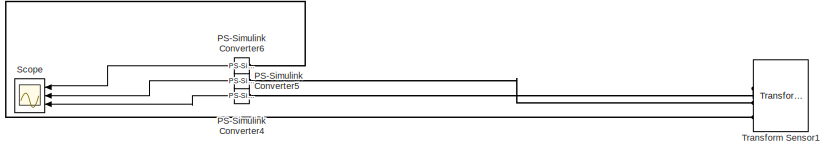
[diagram: root canvas - part 1/2, top center region]
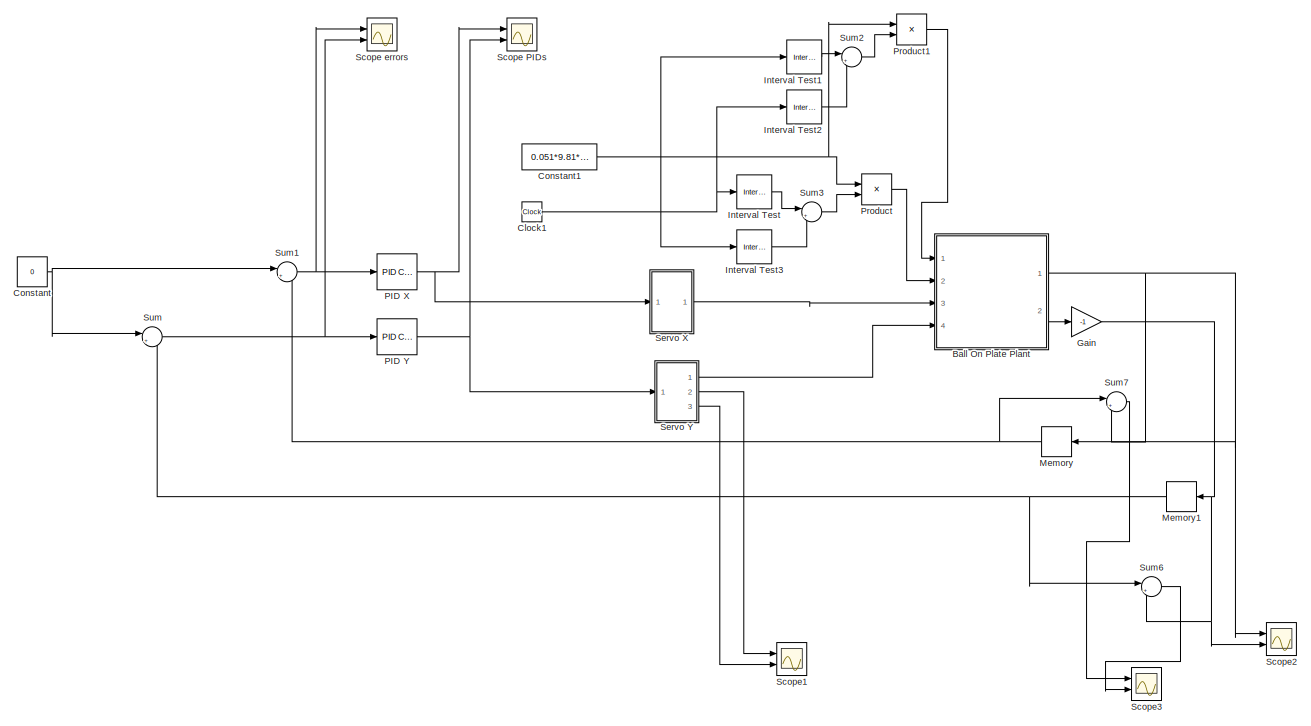
[diagram: root canvas - part 2/2, full width, bottom band]
MODEL slx_c1e351d146ca
KIND model
CONFIG AbsTol = auto
CONFIG EnableMultiTasking = off
CONFIG FixedStep = 1e-5
CONFIG InitFcn = Param
CONFIG MaxStep = auto
CONFIG MinStep = auto
CONFIG RelTol = 1e-1
CONFIG SampleTimeConstraint = Unconstrained
CONFIG SolverName = FixedStepAuto
CONFIG StartTime = 0.0
CONFIG StopTime = 10
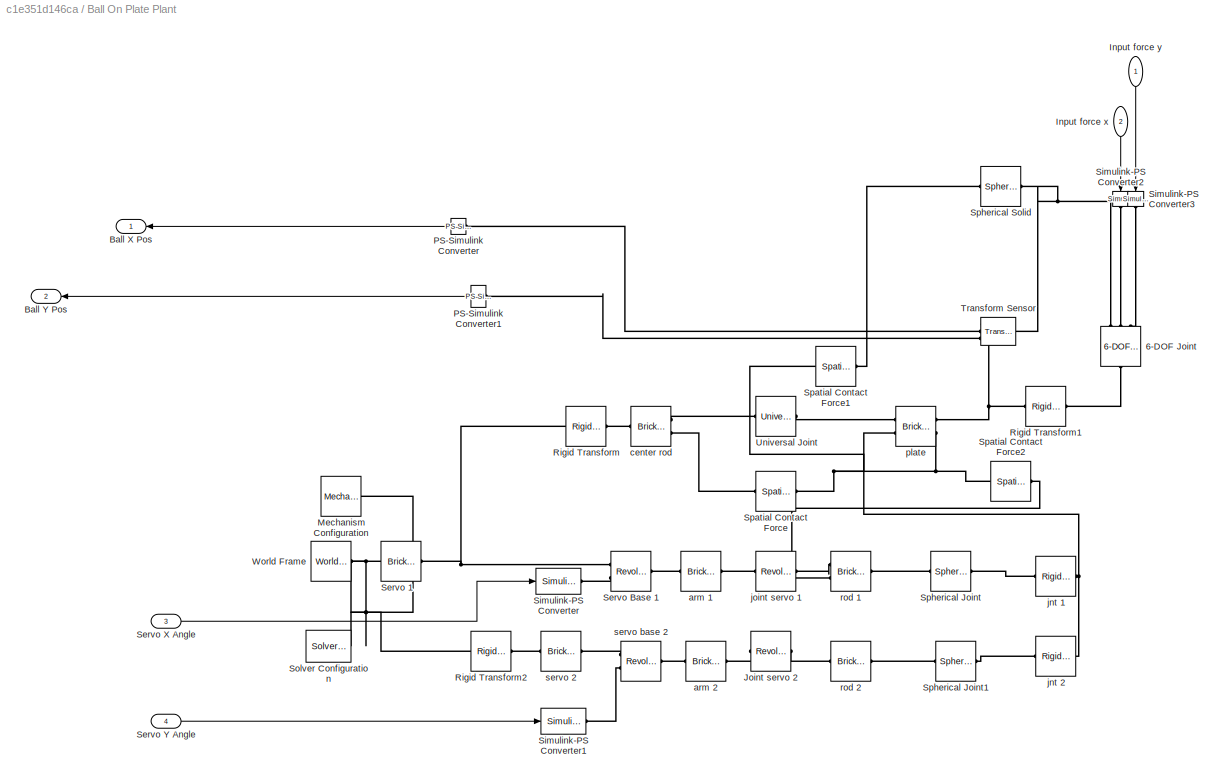
BLOCK [SubSystem] Ball On Plate Plant
  Ports = [4, 2]
  RequestExecContextInheritance = off
BLOCK [Reference] Ball On Plate Plant/6-DOF Joint  REF=sm_lib/Joints/6-DOF Joint
  NameLocation = left
  Ports = [0, 0, 0, 0, 0, 3, 1]
  SourceBlock = sm_lib/Joints/6-DOF Joint
  SourceProductBaseCode = MS
  SourceType = 6-DOF Joint
BLOCK [Outport] Ball On Plate Plant/Ball X Pos
BLOCK [Outport] Ball On Plate Plant/Ball Y Pos
  Port = 2
BLOCK [Inport] Ball On Plate Plant/Input force x
  NameLocation = left
  Port = 2
BLOCK [Inport] Ball On Plate Plant/Input force y
  NameLocation = left
BLOCK [Reference] Ball On Plate Plant/Joint servo 2  REF=sm_lib/Joints/Revolute Joint
  Ports = [0, 0, 0, 0, 0, 1, 1]
  SourceBlock = sm_lib/Joints/Revolute Joint
  SourceProductBaseCode = MS
  SourceType = Revolute Joint
BLOCK [Reference] Ball On Plate Plant/Mechanism Configuration  REF=sm_lib/Utilities/Mechanism
Configuration
  Ports = [0, 0, 0, 0, 0, 0, 1]
  SourceBlock = sm_lib/Utilities/Mechanism\nConfiguration
  SourceProductBaseCode = MS
  SourceType = Mechanism\nConfiguration
BLOCK [Reference] Ball On Plate Plant/PS-Simulink Converter  REF=nesl_utility/PS-Simulink
Converter
  NameLocation = top
  Ports = [0, 1, 0, 0, 0, 1]
  SourceBlock = nesl_utility/PS-Simulink\nConverter
  SourceProductBaseCode = SS
  SourceType = PS-Simulink\nConverter
BLOCK [Reference] Ball On Plate Plant/PS-Simulink Converter1  REF=nesl_utility/PS-Simulink
Converter
  NameLocation = top
  Ports = [0, 1, 0, 0, 0, 1]
  SourceBlock = nesl_utility/PS-Simulink\nConverter
  SourceProductBaseCode = SS
  SourceType = PS-Simulink\nConverter
BLOCK [Reference] Ball On Plate Plant/Rigid Transform  REF=sm_lib/Frames and
Transforms/Rigid
Transform
  Ports = [0, 0, 0, 0, 0, 1, 1]
  SourceBlock = sm_lib/Frames and\nTransforms/Rigid\nTransform
  SourceProductBaseCode = MS
  SourceType = Rigid\nTransform
BLOCK [Reference] Ball On Plate Plant/Rigid Transform1  REF=sm_lib/Frames and
Transforms/Rigid
Transform
  Ports = [0, 0, 0, 0, 0, 1, 1]
  SourceBlock = sm_lib/Frames and\nTransforms/Rigid\nTransform
  SourceProductBaseCode = MS
  SourceType = Rigid\nTransform
BLOCK [Reference] Ball On Plate Plant/Rigid Transform2  REF=sm_lib/Frames and
Transforms/Rigid
Transform
  Ports = [0, 0, 0, 0, 0, 1, 1]
  SourceBlock = sm_lib/Frames and\nTransforms/Rigid\nTransform
  SourceProductBaseCode = MS
  SourceType = Rigid\nTransform
BLOCK [Reference] Ball On Plate Plant/Servo 1  REF=sm_lib/Body Elements/Brick Solid
  Ports = [0, 0, 0, 0, 0, 1, 1]
  SourceBlock = sm_lib/Body Elements/Brick Solid
  SourceProductBaseCode = MS
  SourceType = Brick Solid
BLOCK [Reference] Ball On Plate Plant/Servo Base 1  REF=sm_lib/Joints/Revolute Joint
  Ports = [0, 0, 0, 0, 0, 2, 1]
  SourceBlock = sm_lib/Joints/Revolute Joint
  SourceProductBaseCode = MS
  SourceType = Revolute Joint
BLOCK [Inport] Ball On Plate Plant/Servo X Angle
  Port = 3
BLOCK [Inport] Ball On Plate Plant/Servo Y Angle
  Port = 4
BLOCK [Reference] Ball On Plate Plant/Simulink-PS Converter  REF=nesl_utility/Simulink-PS
Converter
  Ports = [1, 0, 0, 0, 0, 0, 1]
  SourceBlock = nesl_utility/Simulink-PS\nConverter
  SourceProductBaseCode = SS
  SourceType = Simulink-PS\nConverter
BLOCK [Reference] Ball On Plate Plant/Simulink-PS Converter1  REF=nesl_utility/Simulink-PS
Converter
  Ports = [1, 0, 0, 0, 0, 0, 1]
  SourceBlock = nesl_utility/Simulink-PS\nConverter
  SourceProductBaseCode = SS
  SourceType = Simulink-PS\nConverter
BLOCK [Reference] Ball On Plate Plant/Simulink-PS Converter2  REF=nesl_utility/Simulink-PS
Converter
  NameLocation = left
  Ports = [1, 0, 0, 0, 0, 0, 1]
  SourceBlock = nesl_utility/Simulink-PS\nConverter
  SourceProductBaseCode = SS
  SourceType = Simulink-PS\nConverter
BLOCK [Reference] Ball On Plate Plant/Simulink-PS Converter3  REF=nesl_utility/Simulink-PS
Converter
  NameLocation = left
  Ports = [1, 0, 0, 0, 0, 0, 1]
  SourceBlock = nesl_utility/Simulink-PS\nConverter
  SourceProductBaseCode = SS
  SourceType = Simulink-PS\nConverter
BLOCK [Reference] Ball On Plate Plant/Solver Configuration  REF=nesl_utility/Solver
Configuration
  Ports = [0, 0, 0, 0, 0, 0, 1]
  SourceBlock = nesl_utility/Solver\nConfiguration
  SourceProductBaseCode = SS
  SourceType = Solver\nConfiguration
BLOCK [Reference] Ball On Plate Plant/Spatial Contact Force  REF=sm_lib/Forces and
Torques/Spatial
Contact Force
  Ports = [0, 0, 0, 0, 0, 1, 1]
  SourceBlock = sm_lib/Forces and\nTorques/Spatial\nContact Force
  SourceProductBaseCode = MS
  SourceType = Spatial\nContact Force
BLOCK [Reference] Ball On Plate Plant/Spatial Contact Force1  REF=sm_lib/Forces and
Torques/Spatial
Contact Force
  Ports = [0, 0, 0, 0, 0, 1, 1]
  SourceBlock = sm_lib/Forces and\nTorques/Spatial\nContact Force
  SourceProductBaseCode = MS
  SourceType = Spatial\nContact Force
BLOCK [Reference] Ball On Plate Plant/Spatial Contact Force2  REF=sm_lib/Forces and
Torques/Spatial
Contact Force
  Ports = [0, 0, 0, 0, 0, 1, 1]
  SourceBlock = sm_lib/Forces and\nTorques/Spatial\nContact Force
  SourceProductBaseCode = MS
  SourceType = Spatial\nContact Force
BLOCK [Reference] Ball On Plate Plant/Spherical Joint  REF=sm_lib/Joints/Spherical
Joint
  Ports = [0, 0, 0, 0, 0, 1, 1]
  SourceBlock = sm_lib/Joints/Spherical\nJoint
  SourceProductBaseCode = MS
  SourceType = Spherical\nJoint
BLOCK [Reference] Ball On Plate Plant/Spherical Joint1  REF=sm_lib/Joints/Spherical
Joint
  Ports = [0, 0, 0, 0, 0, 1, 1]
  SourceBlock = sm_lib/Joints/Spherical\nJoint
  SourceProductBaseCode = MS
  SourceType = Spherical\nJoint
BLOCK [Reference] Ball On Plate Plant/Spherical Solid  REF=sm_lib/Body Elements/Spherical Solid
  Ports = [0, 0, 0, 0, 0, 1, 1]
  SourceBlock = sm_lib/Body Elements/Spherical Solid
  SourceProductBaseCode = MS
  SourceType = Spherical Solid
BLOCK [Reference] Ball On Plate Plant/Transform Sensor  REF=sm_lib/Frames and
Transforms/Transform
Sensor
  NameLocation = top
  Ports = [0, 0, 0, 0, 0, 1, 3]
  SourceBlock = sm_lib/Frames and\nTransforms/Transform\nSensor
  SourceProductBaseCode = MS
  SourceType = Transform\nSensor
BLOCK [Reference] Ball On Plate Plant/Universal Joint  REF=sm_lib/Joints/Universal
Joint
  Ports = [0, 0, 0, 0, 0, 1, 1]
  SourceBlock = sm_lib/Joints/Universal\nJoint
  SourceProductBaseCode = MS
  SourceType = Universal\nJoint
BLOCK [Reference] Ball On Plate Plant/World Frame  REF=sm_lib/Frames and
Transforms/World Frame
  Ports = [0, 0, 0, 0, 0, 0, 1]
  SourceBlock = sm_lib/Frames and\nTransforms/World Frame
  SourceProductBaseCode = MS
  SourceType = World Frame
BLOCK [Reference] Ball On Plate Plant/arm 1  REF=sm_lib/Body Elements/Brick Solid
  Ports = [0, 0, 0, 0, 0, 1, 1]
  SourceBlock = sm_lib/Body Elements/Brick Solid
  SourceProductBaseCode = MS
  SourceType = Brick Solid
BLOCK [Reference] Ball On Plate Plant/arm 2  REF=sm_lib/Body Elements/Brick Solid
  Ports = [0, 0, 0, 0, 0, 1, 1]
  SourceBlock = sm_lib/Body Elements/Brick Solid
  SourceProductBaseCode = MS
  SourceType = Brick Solid
BLOCK [Reference] Ball On Plate Plant/center rod  REF=sm_lib/Body Elements/Brick Solid
  Ports = [0, 0, 0, 0, 0, 2, 1]
  SourceBlock = sm_lib/Body Elements/Brick Solid
  SourceProductBaseCode = MS
  SourceType = Brick Solid
BLOCK [Reference] Ball On Plate Plant/jnt 1  REF=sm_lib/Frames and
Transforms/Rigid
Transform
  Ports = [0, 0, 0, 0, 0, 1, 1]
  SourceBlock = sm_lib/Frames and\nTransforms/Rigid\nTransform
  SourceProductBaseCode = MS
  SourceType = Rigid\nTransform
BLOCK [Reference] Ball On Plate Plant/jnt 2  REF=sm_lib/Frames and
Transforms/Rigid
Transform
  Ports = [0, 0, 0, 0, 0, 1, 1]
  SourceBlock = sm_lib/Frames and\nTransforms/Rigid\nTransform
  SourceProductBaseCode = MS
  SourceType = Rigid\nTransform
BLOCK [Reference] Ball On Plate Plant/joint servo 1  REF=sm_lib/Joints/Revolute Joint
  Ports = [0, 0, 0, 0, 0, 1, 1]
  SourceBlock = sm_lib/Joints/Revolute Joint
  SourceProductBaseCode = MS
  SourceType = Revolute Joint
BLOCK [Reference] Ball On Plate Plant/plate  REF=sm_lib/Body Elements/Brick Solid
  Ports = [0, 0, 0, 0, 0, 2, 2]
  SourceBlock = sm_lib/Body Elements/Brick Solid
  SourceProductBaseCode = MS
  SourceType = Brick Solid
BLOCK [Reference] Ball On Plate Plant/rod 1  REF=sm_lib/Body Elements/Brick Solid
  Ports = [0, 0, 0, 0, 0, 2, 1]
  SourceBlock = sm_lib/Body Elements/Brick Solid
  SourceProductBaseCode = MS
  SourceType = Brick Solid
BLOCK [Reference] Ball On Plate Plant/rod 2  REF=sm_lib/Body Elements/Brick Solid
  Ports = [0, 0, 0, 0, 0, 1, 1]
  SourceBlock = sm_lib/Body Elements/Brick Solid
  SourceProductBaseCode = MS
  SourceType = Brick Solid
BLOCK [Reference] Ball On Plate Plant/servo 2  REF=sm_lib/Body Elements/Brick Solid
  Ports = [0, 0, 0, 0, 0, 1, 1]
  SourceBlock = sm_lib/Body Elements/Brick Solid
  SourceProductBaseCode = MS
  SourceType = Brick Solid
BLOCK [Reference] Ball On Plate Plant/servo base 2  REF=sm_lib/Joints/Revolute Joint
  Ports = [0, 0, 0, 0, 0, 2, 1]
  SourceBlock = sm_lib/Joints/Revolute Joint
  SourceProductBaseCode = MS
  SourceType = Revolute Joint
BLOCK [Clock] Clock1
  Decimation = 1
BLOCK [Constant] Constant
  Value = 0
BLOCK [Constant] Constant1
  Value = 0.051*9.81*0.2
BLOCK [Gain] Gain
  Gain = -1
BLOCK [Reference] Interval Test  REF=simulink/Logic and Bit
Operations/Interval Test
  Ports = [1, 1]
  SourceBlock = simulink/Logic and Bit\nOperations/Interval Test
  SourceProductBaseCode = SL
  SourceType = Interval Test
BLOCK [Reference] Interval Test1  REF=simulink/Logic and Bit
Operations/Interval Test
  Ports = [1, 1]
  SourceBlock = simulink/Logic and Bit\nOperations/Interval Test
  SourceProductBaseCode = SL
  SourceType = Interval Test
BLOCK [Reference] Interval Test2  REF=simulink/Logic and Bit
Operations/Interval Test
  Ports = [1, 1]
  SourceBlock = simulink/Logic and Bit\nOperations/Interval Test
  SourceProductBaseCode = SL
  SourceType = Interval Test
BLOCK [Reference] Interval Test3  REF=simulink/Logic and Bit
Operations/Interval Test
  Ports = [1, 1]
  SourceBlock = simulink/Logic and Bit\nOperations/Interval Test
  SourceProductBaseCode = SL
  SourceType = Interval Test
BLOCK [Memory] Memory
  NameLocation = top
BLOCK [Memory] Memory1
  NameLocation = top
BLOCK [Reference] PID X  REF=pid_lib/PID Controller
  Ports = [1, 1]
  SourceBlock = pid_lib/PID Controller
  SourceProductBaseCode = SL
  SourceType = PID 1dof
BLOCK [Reference] PID Y  REF=pid_lib/PID Controller
  Ports = [1, 1]
  SourceBlock = pid_lib/PID Controller
  SourceProductBaseCode = SL
  SourceType = PID 1dof
BLOCK [Reference] PS-Simulink Converter4  REF=nesl_utility/PS-Simulink
Converter
  Commented = on
  NameLocation = top
  Ports = [0, 1, 0, 0, 0, 1]
  SourceBlock = nesl_utility/PS-Simulink\nConverter
  SourceProductBaseCode = SS
  SourceType = PS-Simulink\nConverter
BLOCK [Reference] PS-Simulink Converter5  REF=nesl_utility/PS-Simulink
Converter
  Commented = on
  NameLocation = top
  Ports = [0, 1, 0, 0, 0, 1]
  SourceBlock = nesl_utility/PS-Simulink\nConverter
  SourceProductBaseCode = SS
  SourceType = PS-Simulink\nConverter
BLOCK [Reference] PS-Simulink Converter6  REF=nesl_utility/PS-Simulink
Converter
  Commented = on
  NameLocation = top
  Ports = [0, 1, 0, 0, 0, 1]
  SourceBlock = nesl_utility/PS-Simulink\nConverter
  SourceProductBaseCode = SS
  SourceType = PS-Simulink\nConverter
BLOCK [Product] Product
  Ports = [2, 1]
BLOCK [Product] Product1
  Ports = [2, 1]
BLOCK [Scope] Scope
  Commented = on
  Floating = off
  NameLocation = top
  NumInputPorts = 3
  Ports = [3]
  ScopeSpecificationString = Simulink.scopes.TimeScopeBlockCfg('CurrentConfiguration', extmgr.ConfigurationSet(extmgr.Configuration('Core','General UI',true),extmgr.Configuration('Core','Source UI',true),extmgr.Configuration('Sources','WiredSimulink',true,'DataLoggingVariableName','ScopeData1'),extmgr.Configuration('Visuals','Time Domain',true,'SerializedDisplays',{struct('MinYLimReal','-0.00001','MaxYLimReal','0.00011','YLab...<+1566ch>
BLOCK [Scope] Scope PIDs
  Floating = off
  NumInputPorts = 2
  Ports = [2]
  ScopeSpecificationString = Simulink.scopes.TimeScopeBlockCfg('CurrentConfiguration', extmgr.ConfigurationSet(extmgr.Configuration('Core','General UI',true),extmgr.Configuration('Core','Source UI',true),extmgr.Configuration('Sources','WiredSimulink',true,'DataLoggingVariableName','ScopeData1'),extmgr.Configuration('Visuals','Time Domain',true,'SerializedDisplays',{struct('MinYLimReal','-2.57683','MaxYLimReal','3.64473','YLab...<+1469ch>
BLOCK [Scope] Scope errors
  Floating = off
  NumInputPorts = 2
  Ports = [2]
  ScopeSpecificationString = Simulink.scopes.TimeScopeBlockCfg('CurrentConfiguration', extmgr.ConfigurationSet(extmgr.Configuration('Core','General UI',true),extmgr.Configuration('Core','Source UI',true),extmgr.Configuration('Sources','WiredSimulink',true,'DataLoggingVariableName','ScopeData2'),extmgr.Configuration('Visuals','Time Domain',true,'SerializedDisplays',{struct('MinYLimReal','-15.23924','MaxYLimReal','61.65618','YL...<+1375ch>
BLOCK [Scope] Scope1
  Floating = off
  NumInputPorts = 2
  Ports = [2]
  ScopeSpecificationString = Simulink.scopes.TimeScopeBlockCfg('CurrentConfiguration', extmgr.ConfigurationSet(extmgr.Configuration('Core','General UI',true),extmgr.Configuration('Core','Source UI',true),extmgr.Configuration('Sources','WiredSimulink',true,'DataLoggingVariableName','ScopeData3'),extmgr.Configuration('Visuals','Time Domain',true,'SerializedDisplays',{struct('MinYLimReal','-641116.95751','MaxYLimReal','2461942.7...<+1453ch>
BLOCK [Scope] Scope2
  Floating = off
  NumInputPorts = 2
  Ports = [2]
  ScopeSpecificationString = Simulink.scopes.TimeScopeBlockCfg('CurrentConfiguration', extmgr.ConfigurationSet(extmgr.Configuration('Core','General UI',true),extmgr.Configuration('Core','Source UI',true),extmgr.Configuration('Sources','WiredSimulink',true,'DataLoggingVariableName','ScopeData4'),extmgr.Configuration('Visuals','Time Domain',true,'SerializedDisplays',{struct('MinYLimReal','-0.02691','MaxYLimReal','0.03706','YLab...<+1412ch>
BLOCK [Scope] Scope3
  Floating = off
  NumInputPorts = 2
  Ports = [2]
  ScopeSpecificationString = Simulink.scopes.TimeScopeBlockCfg('CurrentConfiguration', extmgr.ConfigurationSet(extmgr.Configuration('Core','General UI',true),extmgr.Configuration('Core','Source UI',true),extmgr.Configuration('Sources','WiredSimulink',true,'DataLoggingVariableName','ScopeData5'),extmgr.Configuration('Visuals','Time Domain',true,'SerializedDisplays',{struct('MinYLimReal','-0.000025','MaxYLimReal','0.000025','YL...<+1447ch>
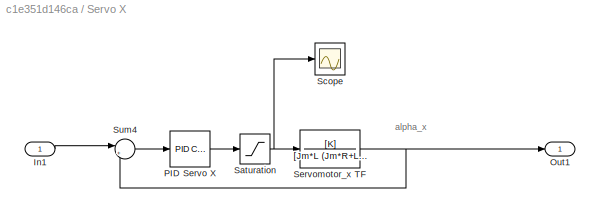
BLOCK [SubSystem] Servo X
  Ports = [1, 1]
  RequestExecContextInheritance = off
BLOCK [Inport] Servo X/In1
BLOCK [Outport] Servo X/Out1
BLOCK [Reference] Servo X/PID Servo X  REF=pid_lib/PID Controller
  Ports = [1, 1]
  SourceBlock = pid_lib/PID Controller
  SourceProductBaseCode = SL
  SourceType = PID 1dof
BLOCK [Saturate] Servo X/Saturation
  LowerLimit = -12
  UpperLimit = 12
BLOCK [Scope] Servo X/Scope
  Floating = off
  NumInputPorts = 1
  Ports = [1]
  ScopeSpecificationString = Simulink.scopes.TimeScopeBlockCfg('CurrentConfiguration', extmgr.ConfigurationSet(extmgr.Configuration('Core','General UI',true),extmgr.Configuration('Core','Source UI',true),extmgr.Configuration('Sources','WiredSimulink',true,'DataLoggingVariableName','ScopeData1'),extmgr.Configuration('Visuals','Time Domain',true),extmgr.Configuration('Tools','Plot Navigation',true),extmgr.Configuration('Tools',...<+40ch>
BLOCK [TransferFcn] Servo X/Servomotor_x TF
  Denominator = [Jm*L (Jm*R+L*c) (R*c+K^2) 0]
  Numerator = [K]
BLOCK [Sum] Servo X/Sum4
  Inputs = |+-
  Ports = [2, 1]
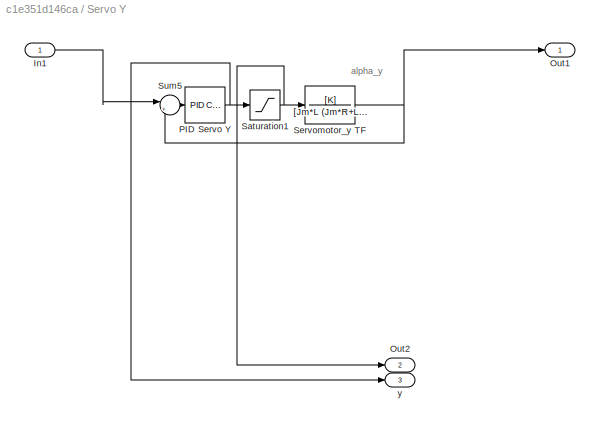
BLOCK [SubSystem] Servo Y
  Ports = [1, 3]
  RequestExecContextInheritance = off
BLOCK [Inport] Servo Y/In1
BLOCK [Outport] Servo Y/Out1
BLOCK [Outport] Servo Y/Out2
  Port = 2
BLOCK [Reference] Servo Y/PID Servo Y  REF=pid_lib/PID Controller
  Ports = [1, 1]
  SourceBlock = pid_lib/PID Controller
  SourceProductBaseCode = SL
  SourceType = PID 1dof
BLOCK [Saturate] Servo Y/Saturation1
  LowerLimit = -12
  UpperLimit = 12
BLOCK [TransferFcn] Servo Y/Servomotor_y TF
  Denominator = [Jm*L (Jm*R+L*c) (R*c+K^2) 0]
  Numerator = [K]
BLOCK [Sum] Servo Y/Sum5
  Inputs = |+-
  Ports = [2, 1]
BLOCK [Outport] Servo Y/y
  Port = 3
BLOCK [Sum] Sum
  Inputs = |+-
  Ports = [2, 1]
BLOCK [Sum] Sum1
  Inputs = |+-
  Ports = [2, 1]
BLOCK [Sum] Sum2
  Inputs = |++
  Ports = [2, 1]
BLOCK [Sum] Sum3
  Inputs = |++
  Ports = [2, 1]
BLOCK [Sum] Sum6
  Inputs = |+-
  Ports = [2, 1]
BLOCK [Sum] Sum7
  Inputs = |+-
  Ports = [2, 1]
BLOCK [Reference] Transform Sensor1  REF=sm_lib/Frames and
Transforms/Transform
Sensor
  Commented = on
  NameLocation = top
  Ports = [0, 0, 0, 0, 0, 1, 4]
  SourceBlock = sm_lib/Frames and\nTransforms/Transform\nSensor
  SourceProductBaseCode = MS
  SourceType = Transform\nSensor
ANNOTATION Servo X: alpha_x
ANNOTATION Servo Y: alpha_y
LINE Ball On Plate Plant/Input force x:1 -> Ball On Plate Plant/Simulink-PS Converter2:1
LINE Ball On Plate Plant/Input force y:1 -> Ball On Plate Plant/Simulink-PS Converter3:1
LINE Ball On Plate Plant/PS-Simulink Converter1:1 -> Ball On Plate Plant/Ball Y Pos:1
LINE Ball On Plate Plant/PS-Simulink Converter:1 -> Ball On Plate Plant/Ball X Pos:1
LINE Ball On Plate Plant/Servo X Angle:1 -> Ball On Plate Plant/Simulink-PS Converter:1
LINE Ball On Plate Plant/Servo Y Angle:1 -> Ball On Plate Plant/Simulink-PS Converter1:1
NET Ball On Plate Plant:1 -> Memory:1, Scope2:1, Sum7:2
LINE Ball On Plate Plant:2 -> Gain:1
NET Clock1:1 -> Interval Test1:1, Interval Test2:1, Interval Test3:1, Interval Test:1
NET Constant1:1 -> Product1:1, Product:1
NET Constant:1 -> Sum1:1, Sum:1
NET Gain:1 -> Memory1:1, Scope2:2, Sum6:2
LINE Interval Test1:1 -> Sum2:1
LINE Interval Test2:1 -> Sum2:2
LINE Interval Test3:1 -> Sum3:2
LINE Interval Test:1 -> Sum3:1
NET Memory1:1 -> Sum6:1, Sum:2
NET Memory:1 -> Sum1:2, Sum7:1
NET PID X:1 -> Scope PIDs:1, Servo X:1
NET PID Y:1 -> Scope PIDs:2, Servo Y:1
LINE PS-Simulink Converter4:1 -> Scope:3
LINE PS-Simulink Converter5:1 -> Scope:2
LINE PS-Simulink Converter6:1 -> Scope:1
LINE Product1:1 -> Ball On Plate Plant:1
LINE Product:1 -> Ball On Plate Plant:2
LINE Servo X/In1:1 -> Servo X/Sum4:1
LINE Servo X/PID Servo X:1 -> Servo X/Saturation:1
NET Servo X/Saturation:1 -> Servo X/Scope:1, Servo X/Servomotor_x TF:1
NET Servo X/Servomotor_x TF:1 -> Servo X/Out1:1, Servo X/Sum4:2
LINE Servo X/Sum4:1 -> Servo X/PID Servo X:1
LINE Servo X:1 -> Ball On Plate Plant:3
LINE Servo Y/In1:1 -> Servo Y/Sum5:1
NET Servo Y/PID Servo Y:1 -> Servo Y/Saturation1:1, Servo Y/y:1
NET Servo Y/Saturation1:1 -> Servo Y/Out2:1, Servo Y/Servomotor_y TF:1
NET Servo Y/Servomotor_y TF:1 -> Servo Y/Out1:1, Servo Y/Sum5:2
LINE Servo Y/Sum5:1 -> Servo Y/PID Servo Y:1
LINE Servo Y:1 -> Ball On Plate Plant:4
LINE Servo Y:2 -> Scope1:1
LINE Servo Y:3 -> Scope1:2
NET Sum1:1 -> PID X:1, Scope errors:1
LINE Sum2:1 -> Product1:2
LINE Sum3:1 -> Product:2
LINE Sum6:1 -> Scope3:2
LINE Sum7:1 -> Scope3:1
NET Sum:1 -> PID Y:1, Scope errors:2
PNET net1: Ball On Plate Plant/6-DOF Joint:LConn1 -- Ball On Plate Plant/Spherical Solid:RConn1 -- Ball On Plate Plant/Transform Sensor:LConn1
PLINE Ball On Plate Plant/6-DOF Joint:LConn2 -- Ball On Plate Plant/Simulink-PS Converter2:RConn1
PLINE Ball On Plate Plant/6-DOF Joint:LConn3 -- Ball On Plate Plant/Simulink-PS Converter3:RConn1
PLINE Ball On Plate Plant/6-DOF Joint:RConn1 -- Ball On Plate Plant/Rigid Transform1:RConn1
PLINE Ball On Plate Plant/Joint servo 2:LConn1 -- Ball On Plate Plant/arm 2:RConn1
PLINE Ball On Plate Plant/Joint servo 2:RConn1 -- Ball On Plate Plant/rod 2:LConn1
PNET net2: Ball On Plate Plant/Mechanism Configuration:RConn1 -- Ball On Plate Plant/Rigid Transform2:LConn1 -- Ball On Plate Plant/Servo 1:RConn1 -- Ball On Plate Plant/Solver Configuration:RConn1 -- Ball On Plate Plant/World Frame:RConn1
PLINE Ball On Plate Plant/PS-Simulink Converter1:LConn1 -- Ball On Plate Plant/Transform Sensor:RConn3
PLINE Ball On Plate Plant/PS-Simulink Converter:LConn1 -- Ball On Plate Plant/Transform Sensor:RConn2
PNET net3: Ball On Plate Plant/Rigid Transform1:LConn1 -- Ball On Plate Plant/Transform Sensor:RConn1 -- Ball On Plate Plant/plate:RConn1
PLINE Ball On Plate Plant/Rigid Transform2:RConn1 -- Ball On Plate Plant/servo 2:RConn1
PNET net4: Ball On Plate Plant/Rigid Transform:LConn1 -- Ball On Plate Plant/Servo 1:LConn1 -- Ball On Plate Plant/Servo Base 1:LConn1
PLINE Ball On Plate Plant/Rigid Transform:RConn1 -- Ball On Plate Plant/center rod:RConn1
PLINE Ball On Plate Plant/Servo Base 1:LConn2 -- Ball On Plate Plant/Simulink-PS Converter:RConn1
PLINE Ball On Plate Plant/Servo Base 1:RConn1 -- Ball On Plate Plant/arm 1:LConn1
PLINE Ball On Plate Plant/Simulink-PS Converter1:RConn1 -- Ball On Plate Plant/servo base 2:LConn2
PNET net5: Ball On Plate Plant/Spatial Contact Force1:LConn1 -- Ball On Plate Plant/Spatial Contact Force2:LConn1 -- Ball On Plate Plant/Spatial Contact Force:LConn1 -- Ball On Plate Plant/plate:RConn2
PLINE Ball On Plate Plant/Spatial Contact Force1:RConn1 -- Ball On Plate Plant/Spherical Solid:LConn1
PLINE Ball On Plate Plant/Spatial Contact Force2:RConn1 -- Ball On Plate Plant/rod 1:LConn2
PLINE Ball On Plate Plant/Spatial Contact Force:RConn1 -- Ball On Plate Plant/center rod:LConn2
PLINE Ball On Plate Plant/Spherical Joint1:LConn1 -- Ball On Plate Plant/rod 2:RConn1
PLINE Ball On Plate Plant/Spherical Joint1:RConn1 -- Ball On Plate Plant/jnt 2:RConn1
PLINE Ball On Plate Plant/Spherical Joint:LConn1 -- Ball On Plate Plant/rod 1:RConn1
PLINE Ball On Plate Plant/Spherical Joint:RConn1 -- Ball On Plate Plant/jnt 1:RConn1
PLINE Ball On Plate Plant/Universal Joint:LConn1 -- Ball On Plate Plant/center rod:LConn1
PLINE Ball On Plate Plant/Universal Joint:RConn1 -- Ball On Plate Plant/plate:LConn1
PLINE Ball On Plate Plant/arm 1:RConn1 -- Ball On Plate Plant/joint servo 1:LConn1
PLINE Ball On Plate Plant/arm 2:LConn1 -- Ball On Plate Plant/servo base 2:RConn1
PNET net6: Ball On Plate Plant/jnt 1:LConn1 -- Ball On Plate Plant/jnt 2:LConn1 -- Ball On Plate Plant/plate:LConn2
PLINE Ball On Plate Plant/joint servo 1:RConn1 -- Ball On Plate Plant/rod 1:LConn1
PLINE Ball On Plate Plant/servo 2:LConn1 -- Ball On Plate Plant/servo base 2:LConn1
PLINE PS-Simulink Converter4:LConn1 -- Transform Sensor1:RConn2
PLINE PS-Simulink Converter5:LConn1 -- Transform Sensor1:RConn3
PLINE PS-Simulink Converter6:LConn1 -- Transform Sensor1:RConn4
note: NET lines group one-source signal fan-out (src -> all destinations, sorted); 1:1 wires keep LINE; PNET lines group multi-terminal physical nets as a canonical sorted terminal list (undirected conserving connections); 2-terminal nets keep the pairwise PLINE form
